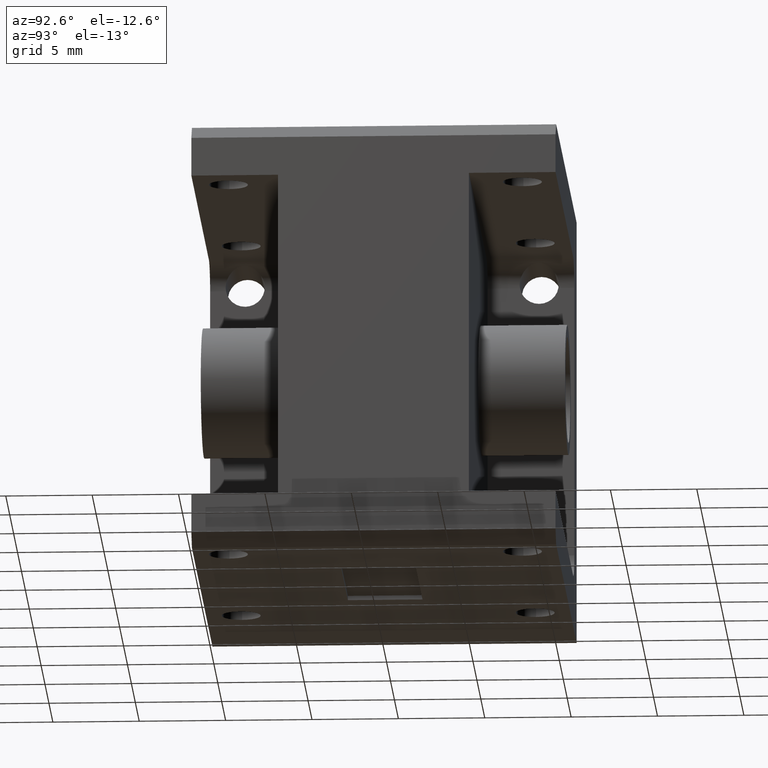
[diagram: clean part render]
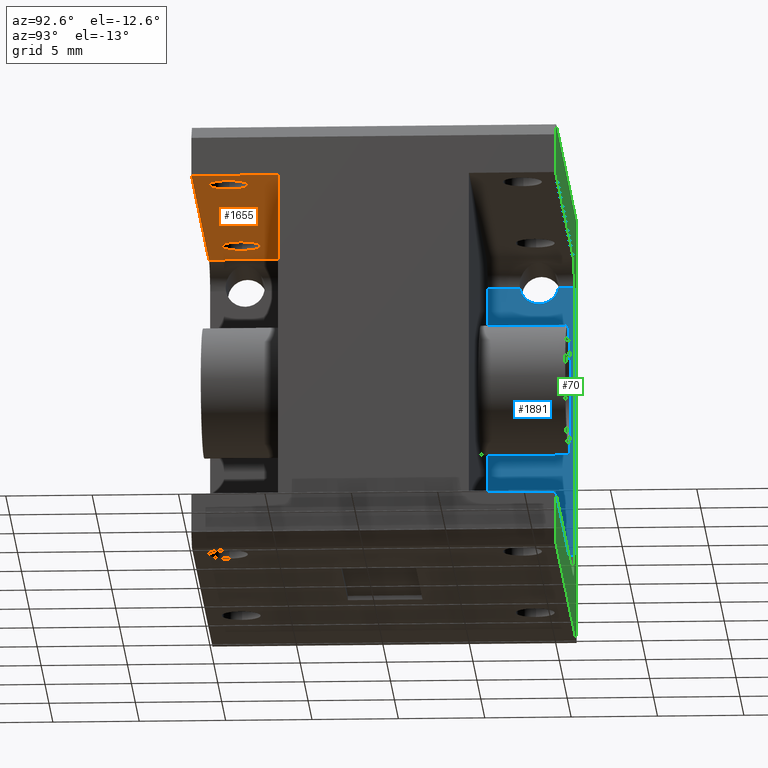
[diagram: same view with three faces highlighted in distinct colors, each labeled with its STEP entity id]
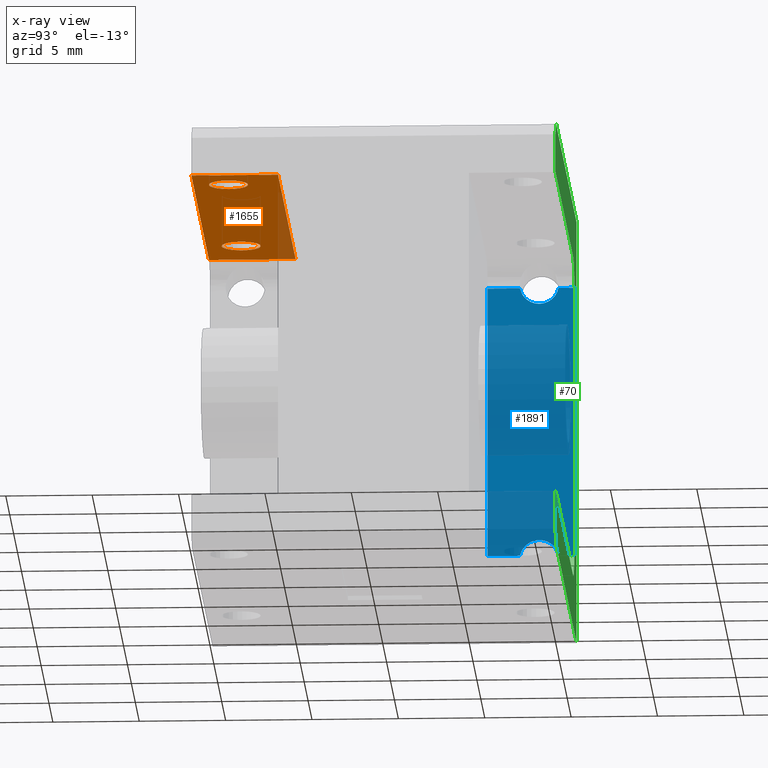
[diagram: x-ray of the same camera — body ghosted, the three highlighted faces saturated]
A machine part, auxiliary view with three faces highlighted in distinct colors.
The next image is the same camera in x-ray (body ghosted, the three faces saturated) — at least one of them is partly hidden behind the body in this view.
Their STEP definitions:

[orange] entity #1655 — the highlighted planar face has unit normal (0, -0, 1).
#98 = DIRECTION ( 'NONE',  ( -0.0000000000000000000, -1.000000000000000000, -0.0000000000000000000 ) ) ;
#190 = DIRECTION ( 'NONE',  ( 1.450025474344088800E-016, -0.0000000000000000000, 1.000000000000000000 ) ) ;
#208 = EDGE_CURVE ( 'NONE', #1714, #748, #1766, .T. ) ;
#235 = ORIENTED_EDGE ( 'NONE', *, *, #208, .F. ) ;
#284 = VERTEX_POINT ( 'NONE', #2054 ) ;
#305 = EDGE_CURVE ( 'NONE', #1714, #2191, #2161, .T. ) ;
#328 = DIRECTION ( 'NONE',  ( 1.450025474344088800E-016, -0.0000000000000000000, 1.000000000000000000 ) ) ;
#426 = VERTEX_POINT ( 'NONE', #1487 ) ;
#441 = CIRCLE ( 'NONE', #1837, 0.04449999999999969300 ) ;
#463 = CARTESIAN_POINT ( 'NONE',  ( -0.3442671711059316400, 0.1975000000000000400, 0.3699345026468289800 ) ) ;
#476 = VECTOR ( 'NONE', #98, 39.37007874015748100 ) ;
#522 = DIRECTION ( 'NONE',  ( 1.000000000000000000, 0.0000000000000000000, 0.0000000000000000000 ) ) ;
#559 = CARTESIAN_POINT ( 'NONE',  ( -0.1577671711059317500, 0.08000000000000002900, 0.3699345026468290300 ) ) ;
#585 = ORIENTED_EDGE ( 'NONE', *, *, #1185, .T. ) ;
#624 = CARTESIAN_POINT ( 'NONE',  ( 0.5377328288940684800, 0.8300000000000000700, 0.3699345026468289800 ) ) ;
#666 = DIRECTION ( 'NONE',  ( 1.450025474344088800E-016, -0.0000000000000000000, 1.000000000000000000 ) ) ;
#676 = CARTESIAN_POINT ( 'NONE',  ( -0.3442671711059315800, 0.1975000000000000100, 0.3699345026468290900 ) ) ;
#748 = VERTEX_POINT ( 'NONE', #463 ) ;
#800 = DIRECTION ( 'NONE',  ( 1.000000000000000000, 0.0000000000000000000, -1.450025474344088800E-016 ) ) ;
#812 = DIRECTION ( 'NONE',  ( 1.450025474344088800E-016, -0.0000000000000000000, 1.000000000000000000 ) ) ;
#840 = VECTOR ( 'NONE', #2396, 39.37007874015748100 ) ;
#854 = CARTESIAN_POINT ( 'NONE',  ( -0.2022671711059314500, 0.08000000000000002900, 0.3699345026468290300 ) ) ;
#885 = CARTESIAN_POINT ( 'NONE',  ( -0.3442671711059315800, 0.0000000000000000000, 0.3699345026468290900 ) ) ;
#897 = FACE_BOUND ( 'NONE', #1592, .T. ) ;
#906 = VERTEX_POINT ( 'NONE', #885 ) ;
#1006 = AXIS2_PLACEMENT_3D ( 'NONE', #854, #666, #522 ) ;
#1009 = PLANE ( 'NONE',  #2290 ) ;
#1045 = DIRECTION ( 'NONE',  ( -1.000000000000000000, 0.0000000000000000000, 1.450025474344088800E-016 ) ) ;
#1079 = ORIENTED_EDGE ( 'NONE', *, *, #305, .T. ) ;
#1154 = CARTESIAN_POINT ( 'NONE',  ( 0.4377328288940685600, 0.07999999999999996000, 0.3699345026468289800 ) ) ;
#1185 = EDGE_CURVE ( 'NONE', #426, #284, #1726, .T. ) ;
#1202 = LINE ( 'NONE', #676, #1600 ) ;
#1339 = EDGE_CURVE ( 'NONE', #2171, #1449, #1395, .T. ) ;
#1346 = EDGE_LOOP ( 'NONE', ( #1351, #1819, #235, #1079 ) ) ;
#1351 = ORIENTED_EDGE ( 'NONE', *, *, #2124, .T. ) ;
#1359 = VECTOR ( 'NONE', #1045, 39.37007874015748100 ) ;
#1395 = CIRCLE ( 'NONE', #1006, 0.04449999999999972000 ) ;
#1419 = CARTESIAN_POINT ( 'NONE',  ( 0.4377328288940685600, 0.07999999999999996000, 0.3699345026468289800 ) ) ;
#1449 = VERTEX_POINT ( 'NONE', #2127 ) ;
#1471 = CARTESIAN_POINT ( 'NONE',  ( 0.5377328288940684800, 0.8300000000000000700, 0.3699345026468289800 ) ) ;
#1487 = CARTESIAN_POINT ( 'NONE',  ( 0.3932328288940689100, 0.07999999999999996000, 0.3699345026468289800 ) ) ;
#1491 = CARTESIAN_POINT ( 'NONE',  ( -0.2022671711059314500, 0.08000000000000002900, 0.3699345026468290300 ) ) ;
#1496 = DIRECTION ( 'NONE',  ( 1.000000000000000000, 0.0000000000000000000, 0.0000000000000000000 ) ) ;
#1521 = EDGE_LOOP ( 'NONE', ( #1757, #2448 ) ) ;
#1592 = EDGE_LOOP ( 'NONE', ( #1878, #585 ) ) ;
#1600 = VECTOR ( 'NONE', #2239, 39.37007874015748100 ) ;
#1621 = AXIS2_PLACEMENT_3D ( 'NONE', #1491, #328, #1496 ) ;
#1655 = ADVANCED_FACE ( 'NONE', ( #897, #1821, #1694 ), #1009, .F. ) ;
#1694 = FACE_OUTER_BOUND ( 'NONE', #1346, .T. ) ;
#1714 = VERTEX_POINT ( 'NONE', #2456 ) ;
#1726 = CIRCLE ( 'NONE', #1730, 0.04449999999999969300 ) ;
#1730 = AXIS2_PLACEMENT_3D ( 'NONE', #1419, #1790, #2010 ) ;
#1757 = ORIENTED_EDGE ( 'NONE', *, *, #1339, .T. ) ;
#1759 = EDGE_CURVE ( 'NONE', #1449, #2171, #2090, .T. ) ;
#1766 = LINE ( 'NONE', #1839, #840 ) ;
#1790 = DIRECTION ( 'NONE',  ( 1.450025474344088800E-016, -0.0000000000000000000, 1.000000000000000000 ) ) ;
#1819 = ORIENTED_EDGE ( 'NONE', *, *, #2108, .T. ) ;
#1821 = FACE_BOUND ( 'NONE', #1521, .T. ) ;
#1837 = AXIS2_PLACEMENT_3D ( 'NONE', #1154, #190, #1952 ) ;
#1839 = CARTESIAN_POINT ( 'NONE',  ( 0.5377328288940683700, 0.1975000000000000400, 0.3699345026468289800 ) ) ;
#1874 = LINE ( 'NONE', #2222, #1359 ) ;
#1878 = ORIENTED_EDGE ( 'NONE', *, *, #2022, .T. ) ;
#1922 = CARTESIAN_POINT ( 'NONE',  ( 0.5377328288940684800, 0.0000000000000000000, 0.3699345026468289800 ) ) ;
#1952 = DIRECTION ( 'NONE',  ( 1.000000000000000000, 0.0000000000000000000, 0.0000000000000000000 ) ) ;
#2010 = DIRECTION ( 'NONE',  ( 1.000000000000000000, 0.0000000000000000000, 0.0000000000000000000 ) ) ;
#2022 = EDGE_CURVE ( 'NONE', #284, #426, #441, .T. ) ;
#2054 = CARTESIAN_POINT ( 'NONE',  ( 0.4822328288940682700, 0.07999999999999996000, 0.3699345026468289800 ) ) ;
#2090 = CIRCLE ( 'NONE', #1621, 0.04449999999999972000 ) ;
#2108 = EDGE_CURVE ( 'NONE', #906, #748, #1202, .T. ) ;
#2124 = EDGE_CURVE ( 'NONE', #2191, #906, #1874, .T. ) ;
#2127 = CARTESIAN_POINT ( 'NONE',  ( -0.2467671711059311900, 0.08000000000000002900, 0.3699345026468290300 ) ) ;
#2161 = LINE ( 'NONE', #1471, #476 ) ;
#2171 = VERTEX_POINT ( 'NONE', #559 ) ;
#2191 = VERTEX_POINT ( 'NONE', #1922 ) ;
#2222 = CARTESIAN_POINT ( 'NONE',  ( 0.5377328288940684800, 0.0000000000000000000, 0.3699345026468289800 ) ) ;
#2239 = DIRECTION ( 'NONE',  ( -0.0000000000000000000, 1.000000000000000000, -0.0000000000000000000 ) ) ;
#2290 = AXIS2_PLACEMENT_3D ( 'NONE', #624, #812, #800 ) ;
#2396 = DIRECTION ( 'NONE',  ( -1.000000000000000000, -0.0000000000000000000, -0.0000000000000000000 ) ) ;
#2448 = ORIENTED_EDGE ( 'NONE', *, *, #1759, .T. ) ;
#2456 = CARTESIAN_POINT ( 'NONE',  ( 0.5377328288940683700, 0.1975000000000000400, 0.3699345026468289800 ) ) ;

[blue] entity #1891 — the highlighted planar face has unit normal (-1, 0, 0).
#29 = VERTEX_POINT ( 'NONE', #791 ) ;
#51 = FACE_OUTER_BOUND ( 'NONE', #1667, .T. ) ;
#117 = DIRECTION ( 'NONE',  ( 0.0000000000000000000, 0.0000000000000000000, 1.000000000000000000 ) ) ;
#121 = ORIENTED_EDGE ( 'NONE', *, *, #1577, .T. ) ;
#137 = DIRECTION ( 'NONE',  ( 0.0000000000000000000, 0.0000000000000000000, -1.000000000000000000 ) ) ;
#148 = ORIENTED_EDGE ( 'NONE', *, *, #902, .T. ) ;
#153 = CARTESIAN_POINT ( 'NONE',  ( -0.4042671711059315800, 0.7937749928612213300, 0.3099345026468290900 ) ) ;
#157 = AXIS2_PLACEMENT_3D ( 'NONE', #1747, #566, #762 ) ;
#168 = CARTESIAN_POINT ( 'NONE',  ( -0.4042671711059315800, 0.8300000000000000700, -0.3140654973531709600 ) ) ;
#221 = EDGE_CURVE ( 'NONE', #1953, #1742, #1251, .T. ) ;
#240 = VERTEX_POINT ( 'NONE', #1047 ) ;
#243 = AXIS2_PLACEMENT_3D ( 'NONE', #2326, #593, #1374 ) ;
#245 = CARTESIAN_POINT ( 'NONE',  ( -0.4042671711059315800, 0.8300000000000000700, -0.3140654973531709600 ) ) ;
#279 = AXIS2_PLACEMENT_3D ( 'NONE', #881, #2070, #117 ) ;
#382 = DIRECTION ( 'NONE',  ( -0.0000000000000000000, 1.000000000000000000, -0.0000000000000000000 ) ) ;
#456 = CARTESIAN_POINT ( 'NONE',  ( -0.4042671711059315800, 0.6325000000000001700, 0.3099345026468290900 ) ) ;
#499 = EDGE_CURVE ( 'NONE', #1919, #29, #899, .T. ) ;
#541 = ORIENTED_EDGE ( 'NONE', *, *, #1367, .F. ) ;
#566 = DIRECTION ( 'NONE',  ( -1.000000000000000000, 0.0000000000000000000, 0.0000000000000000000 ) ) ;
#567 = EDGE_CURVE ( 'NONE', #1742, #240, #2132, .T. ) ;
#593 = DIRECTION ( 'NONE',  ( -1.000000000000000000, 0.0000000000000000000, 0.0000000000000000000 ) ) ;
#602 = CARTESIAN_POINT ( 'NONE',  ( -0.4042671711059315800, 0.6325000000000001700, -0.3140654973531709600 ) ) ;
#654 = CIRCLE ( 'NONE', #279, 0.04449999999999969300 ) ;
#656 = LINE ( 'NONE', #717, #1332 ) ;
#712 = VECTOR ( 'NONE', #382, 39.37007874015748100 ) ;
#717 = CARTESIAN_POINT ( 'NONE',  ( -0.4042671711059315800, 0.8300000000000000700, 0.3699345026468290900 ) ) ;
#726 = CARTESIAN_POINT ( 'NONE',  ( -0.4042671711059315800, 0.6325000000000001700, 0.3099345026468290900 ) ) ;
#727 = VERTEX_POINT ( 'NONE', #1836 ) ;
#733 = VERTEX_POINT ( 'NONE', #1968 ) ;
#762 = DIRECTION ( 'NONE',  ( 0.0000000000000000000, 0.0000000000000000000, 1.000000000000000000 ) ) ;
#778 = VECTOR ( 'NONE', #1231, 39.37007874015748100 ) ;
#791 = CARTESIAN_POINT ( 'NONE',  ( -0.4042671711059315800, 0.7500000000000001100, 0.2734345026468292300 ) ) ;
#829 = VECTOR ( 'NONE', #2385, 39.37007874015748100 ) ;
#847 = DIRECTION ( 'NONE',  ( 0.0000000000000000000, 0.0000000000000000000, 1.000000000000000000 ) ) ;
#864 = LINE ( 'NONE', #168, #712 ) ;
#881 = CARTESIAN_POINT ( 'NONE',  ( -0.4042671711059315800, 0.7500000000000001100, -0.3220654973531710800 ) ) ;
#899 = CIRCLE ( 'NONE', #243, 0.04449999999999969300 ) ;
#902 = EDGE_CURVE ( 'NONE', #1675, #1919, #1138, .T. ) ;
#1047 = CARTESIAN_POINT ( 'NONE',  ( -0.4042671711059315800, 0.7500000000000001100, -0.2775654973531713800 ) ) ;
#1081 = VECTOR ( 'NONE', #2053, 39.37007874015748100 ) ;
#1138 = LINE ( 'NONE', #2061, #1081 ) ;
#1142 = ORIENTED_EDGE ( 'NONE', *, *, #499, .T. ) ;
#1173 = CARTESIAN_POINT ( 'NONE',  ( -0.4042671711059315800, 0.7062250071387787800, 0.3099345026468290900 ) ) ;
#1231 = DIRECTION ( 'NONE',  ( -0.0000000000000000000, 1.000000000000000000, -0.0000000000000000000 ) ) ;
#1251 = LINE ( 'NONE', #245, #778 ) ;
#1262 = AXIS2_PLACEMENT_3D ( 'NONE', #1516, #1934, #2293 ) ;
#1276 = ORIENTED_EDGE ( 'NONE', *, *, #1318, .T. ) ;
#1294 = CARTESIAN_POINT ( 'NONE',  ( -0.4042671711059315800, 0.6325000000000001700, -0.3740654973531709100 ) ) ;
#1318 = EDGE_CURVE ( 'NONE', #29, #1960, #1909, .T. ) ;
#1332 = VECTOR ( 'NONE', #137, 39.37007874015748100 ) ;
#1367 = EDGE_CURVE ( 'NONE', #1675, #733, #656, .T. ) ;
#1374 = DIRECTION ( 'NONE',  ( 0.0000000000000000000, 0.0000000000000000000, 1.000000000000000000 ) ) ;
#1385 = ORIENTED_EDGE ( 'NONE', *, *, #1812, .T. ) ;
#1499 = ORIENTED_EDGE ( 'NONE', *, *, #2087, .T. ) ;
#1514 = VERTEX_POINT ( 'NONE', #726 ) ;
#1516 = CARTESIAN_POINT ( 'NONE',  ( -0.4042671711059315800, 0.8300000000000000700, 0.3699345026468290900 ) ) ;
#1552 = ORIENTED_EDGE ( 'NONE', *, *, #1799, .F. ) ;
#1568 = VECTOR ( 'NONE', #1702, 39.37007874015748100 ) ;
#1577 = EDGE_CURVE ( 'NONE', #727, #733, #864, .T. ) ;
#1603 = LINE ( 'NONE', #1294, #1568 ) ;
#1638 = CARTESIAN_POINT ( 'NONE',  ( -0.4042671711059315800, 0.7500000000000001100, 0.3179345026468289300 ) ) ;
#1660 = LINE ( 'NONE', #456, #829 ) ;
#1667 = EDGE_LOOP ( 'NONE', ( #1552, #2316, #2238, #1385, #121, #541, #148, #1142, #1276, #1499 ) ) ;
#1670 = AXIS2_PLACEMENT_3D ( 'NONE', #1638, #2431, #847 ) ;
#1675 = VERTEX_POINT ( 'NONE', #2177 ) ;
#1702 = DIRECTION ( 'NONE',  ( 0.0000000000000000000, 0.0000000000000000000, 1.000000000000000000 ) ) ;
#1735 = PLANE ( 'NONE',  #1262 ) ;
#1742 = VERTEX_POINT ( 'NONE', #2283 ) ;
#1747 = CARTESIAN_POINT ( 'NONE',  ( -0.4042671711059315800, 0.7500000000000001100, -0.3220654973531710800 ) ) ;
#1799 = EDGE_CURVE ( 'NONE', #1953, #1514, #1603, .T. ) ;
#1812 = EDGE_CURVE ( 'NONE', #240, #727, #654, .T. ) ;
#1836 = CARTESIAN_POINT ( 'NONE',  ( -0.4042671711059315800, 0.7937749928612213300, -0.3140654973531709600 ) ) ;
#1891 = ADVANCED_FACE ( 'NONE', ( #51 ), #1735, .F. ) ;
#1909 = CIRCLE ( 'NONE', #1670, 0.04449999999999969300 ) ;
#1919 = VERTEX_POINT ( 'NONE', #153 ) ;
#1934 = DIRECTION ( 'NONE',  ( -1.000000000000000000, 0.0000000000000000000, 0.0000000000000000000 ) ) ;
#1953 = VERTEX_POINT ( 'NONE', #602 ) ;
#1960 = VERTEX_POINT ( 'NONE', #1173 ) ;
#1968 = CARTESIAN_POINT ( 'NONE',  ( -0.4042671711059315800, 0.8300000000000000700, -0.3140654973531710200 ) ) ;
#2053 = DIRECTION ( 'NONE',  ( 0.0000000000000000000, -1.000000000000000000, 0.0000000000000000000 ) ) ;
#2061 = CARTESIAN_POINT ( 'NONE',  ( -0.4042671711059315800, 0.6325000000000001700, 0.3099345026468290900 ) ) ;
#2070 = DIRECTION ( 'NONE',  ( -1.000000000000000000, 0.0000000000000000000, 0.0000000000000000000 ) ) ;
#2087 = EDGE_CURVE ( 'NONE', #1960, #1514, #1660, .T. ) ;
#2132 = CIRCLE ( 'NONE', #157, 0.04449999999999969300 ) ;
#2177 = CARTESIAN_POINT ( 'NONE',  ( -0.4042671711059315800, 0.8300000000000000700, 0.3099345026468290900 ) ) ;
#2238 = ORIENTED_EDGE ( 'NONE', *, *, #567, .T. ) ;
#2283 = CARTESIAN_POINT ( 'NONE',  ( -0.4042671711059315800, 0.7062250071387787800, -0.3140654973531709600 ) ) ;
#2293 = DIRECTION ( 'NONE',  ( 0.0000000000000000000, 0.0000000000000000000, 1.000000000000000000 ) ) ;
#2316 = ORIENTED_EDGE ( 'NONE', *, *, #221, .T. ) ;
#2326 = CARTESIAN_POINT ( 'NONE',  ( -0.4042671711059315800, 0.7500000000000001100, 0.3179345026468289300 ) ) ;
#2385 = DIRECTION ( 'NONE',  ( 0.0000000000000000000, -1.000000000000000000, 0.0000000000000000000 ) ) ;
#2431 = DIRECTION ( 'NONE',  ( -1.000000000000000000, 0.0000000000000000000, 0.0000000000000000000 ) ) ;

[green] entity #70 — the highlighted planar face has unit normal (0, 1, 0).
#30 = CARTESIAN_POINT ( 'NONE',  ( 0.0000000000000000000, 0.8300000000000000700, 0.0000000000000000000 ) ) ;
#39 = AXIS2_PLACEMENT_3D ( 'NONE', #2145, #770, #2512 ) ;
#44 = CARTESIAN_POINT ( 'NONE',  ( 0.5377328288940683700, 0.8300000000000000700, -0.3740654973531709600 ) ) ;
#62 = LINE ( 'NONE', #958, #326 ) ;
#63 = ORIENTED_EDGE ( 'NONE', *, *, #601, .T. ) ;
#64 = ORIENTED_EDGE ( 'NONE', *, *, #1557, .T. ) ;
#70 = ADVANCED_FACE ( 'NONE', ( #2466 ), #1990, .T. ) ;
#76 = CARTESIAN_POINT ( 'NONE',  ( -0.3442671711059315800, 0.8300000000000000700, 0.3699345026468290900 ) ) ;
#115 = VECTOR ( 'NONE', #1399, 39.37007874015748100 ) ;
#137 = DIRECTION ( 'NONE',  ( 0.0000000000000000000, 0.0000000000000000000, -1.000000000000000000 ) ) ;
#156 = VERTEX_POINT ( 'NONE', #76 ) ;
#182 = AXIS2_PLACEMENT_3D ( 'NONE', #1575, #1157, #1376 ) ;
#233 = DIRECTION ( 'NONE',  ( -0.0000000000000000000, -0.0000000000000000000, 1.000000000000000000 ) ) ;
#321 = LINE ( 'NONE', #2188, #2338 ) ;
#326 = VECTOR ( 'NONE', #1728, 39.37007874015748100 ) ;
#405 = EDGE_CURVE ( 'NONE', #1895, #1985, #1484, .T. ) ;
#506 = LINE ( 'NONE', #1386, #115 ) ;
#513 = EDGE_CURVE ( 'NONE', #733, #1033, #1215, .T. ) ;
#521 = ORIENTED_EDGE ( 'NONE', *, *, #1367, .T. ) ;
#557 = CARTESIAN_POINT ( 'NONE',  ( 0.5377328288940684800, 0.8300000000000000700, -0.4920654973531710100 ) ) ;
#562 = CARTESIAN_POINT ( 'NONE',  ( -0.3442671711059315800, 0.8300000000000000700, -0.3740654973531709600 ) ) ;
#575 = DIRECTION ( 'NONE',  ( 0.7071067811865468000, -0.0000000000000000000, -0.7071067811865483500 ) ) ;
#596 = DIRECTION ( 'NONE',  ( 0.0000000000000000000, 1.000000000000000000, 0.0000000000000000000 ) ) ;
#601 = EDGE_CURVE ( 'NONE', #1034, #1652, #62, .T. ) ;
#635 = EDGE_CURVE ( 'NONE', #1092, #1964, #2251, .T. ) ;
#649 = EDGE_CURVE ( 'NONE', #2346, #1034, #2432, .T. ) ;
#656 = LINE ( 'NONE', #717, #1332 ) ;
#660 = VERTEX_POINT ( 'NONE', #44 ) ;
#699 = EDGE_CURVE ( 'NONE', #1033, #660, #506, .T. ) ;
#714 = VECTOR ( 'NONE', #1599, 39.37007874015748100 ) ;
#717 = CARTESIAN_POINT ( 'NONE',  ( -0.4042671711059315800, 0.8300000000000000700, 0.3699345026468290900 ) ) ;
#733 = VERTEX_POINT ( 'NONE', #1968 ) ;
#740 = VECTOR ( 'NONE', #575, 39.37007874015748100 ) ;
#770 = DIRECTION ( 'NONE',  ( -0.0000000000000000000, -1.000000000000000000, -0.0000000000000000000 ) ) ;
#833 = ORIENTED_EDGE ( 'NONE', *, *, #635, .T. ) ;
#892 = VECTOR ( 'NONE', #2416, 39.37007874015748100 ) ;
#958 = CARTESIAN_POINT ( 'NONE',  ( 0.5377328288940684800, 0.8300000000000000700, 0.4879345026468289700 ) ) ;
#966 = CARTESIAN_POINT ( 'NONE',  ( 0.5077328288940683400, 0.8300000000000000700, -0.4920654973531710100 ) ) ;
#1023 = VECTOR ( 'NONE', #233, 39.37007874015748100 ) ;
#1030 = ORIENTED_EDGE ( 'NONE', *, *, #1246, .T. ) ;
#1033 = VERTEX_POINT ( 'NONE', #562 ) ;
#1034 = VERTEX_POINT ( 'NONE', #2494 ) ;
#1082 = EDGE_CURVE ( 'NONE', #1652, #1092, #1537, .T. ) ;
#1092 = VERTEX_POINT ( 'NONE', #1569 ) ;
#1157 = DIRECTION ( 'NONE',  ( -0.0000000000000000000, -1.000000000000000000, -0.0000000000000000000 ) ) ;
#1165 = ORIENTED_EDGE ( 'NONE', *, *, #2151, .T. ) ;
#1170 = LINE ( 'NONE', #1396, #2491 ) ;
#1189 = ORIENTED_EDGE ( 'NONE', *, *, #405, .T. ) ;
#1215 = CIRCLE ( 'NONE', #39, 0.06000000000000001200 ) ;
#1218 = CARTESIAN_POINT ( 'NONE',  ( -0.5222671711059315700, 0.8300000000000000700, 0.4879345026468290800 ) ) ;
#1238 = ORIENTED_EDGE ( 'NONE', *, *, #1082, .T. ) ;
#1246 = EDGE_CURVE ( 'NONE', #1964, #156, #1170, .T. ) ;
#1319 = CARTESIAN_POINT ( 'NONE',  ( 0.5377328288940684800, 0.8300000000000000700, -0.4620654973531706500 ) ) ;
#1331 = CARTESIAN_POINT ( 'NONE',  ( 0.4998991631236220900, 0.8300000000000000700, -0.4998991631236175400 ) ) ;
#1332 = VECTOR ( 'NONE', #137, 39.37007874015748100 ) ;
#1367 = EDGE_CURVE ( 'NONE', #1675, #733, #656, .T. ) ;
#1376 = DIRECTION ( 'NONE',  ( 0.0000000000000000000, 0.0000000000000000000, 1.000000000000000000 ) ) ;
#1380 = CARTESIAN_POINT ( 'NONE',  ( -0.5222671711059315700, 0.8300000000000000700, -0.4920654973531708400 ) ) ;
#1386 = CARTESIAN_POINT ( 'NONE',  ( -0.4042671711059315800, 0.8300000000000000700, -0.3740654973531709600 ) ) ;
#1396 = CARTESIAN_POINT ( 'NONE',  ( 0.5377328288940684800, 0.8300000000000000700, 0.3699345026468289800 ) ) ;
#1399 = DIRECTION ( 'NONE',  ( 1.000000000000000000, 0.0000000000000000000, 0.0000000000000000000 ) ) ;
#1428 = DIRECTION ( 'NONE',  ( -1.000000000000000000, 0.0000000000000000000, 1.450025474344088800E-016 ) ) ;
#1484 = LINE ( 'NONE', #1331, #1825 ) ;
#1537 = LINE ( 'NONE', #2324, #740 ) ;
#1557 = EDGE_CURVE ( 'NONE', #156, #1675, #1907, .T. ) ;
#1569 = CARTESIAN_POINT ( 'NONE',  ( 0.5377328288940684800, 0.8300000000000000700, 0.4579345026468293300 ) ) ;
#1575 = CARTESIAN_POINT ( 'NONE',  ( -0.3442671711059315800, 0.8300000000000000700, 0.3099345026468290900 ) ) ;
#1579 = ORIENTED_EDGE ( 'NONE', *, *, #649, .T. ) ;
#1599 = DIRECTION ( 'NONE',  ( 0.0000000000000000000, 0.0000000000000000000, -1.000000000000000000 ) ) ;
#1642 = EDGE_LOOP ( 'NONE', ( #63, #1238, #833, #1030, #64, #521, #2167, #2137, #1789, #1189, #1165, #1579 ) ) ;
#1645 = EDGE_CURVE ( 'NONE', #660, #1895, #321, .T. ) ;
#1652 = VERTEX_POINT ( 'NONE', #1982 ) ;
#1675 = VERTEX_POINT ( 'NONE', #2177 ) ;
#1728 = DIRECTION ( 'NONE',  ( 1.000000000000000000, -0.0000000000000000000, -1.288607544181256200E-016 ) ) ;
#1762 = CARTESIAN_POINT ( 'NONE',  ( 0.5377328288940684800, 0.8300000000000000700, 0.3699345026468289800 ) ) ;
#1785 = DIRECTION ( 'NONE',  ( 0.0000000000000000000, -0.0000000000000000000, 1.000000000000000000 ) ) ;
#1789 = ORIENTED_EDGE ( 'NONE', *, *, #1645, .T. ) ;
#1796 = DIRECTION ( 'NONE',  ( 5.787813545898858700E-016, 0.0000000000000000000, -1.000000000000000000 ) ) ;
#1802 = CARTESIAN_POINT ( 'NONE',  ( 0.5377328288940684800, 0.8300000000000000700, 0.4879345026468289700 ) ) ;
#1825 = VECTOR ( 'NONE', #2302, 39.37007874015748100 ) ;
#1895 = VERTEX_POINT ( 'NONE', #1319 ) ;
#1907 = CIRCLE ( 'NONE', #182, 0.05999999999999997700 ) ;
#1964 = VERTEX_POINT ( 'NONE', #1762 ) ;
#1968 = CARTESIAN_POINT ( 'NONE',  ( -0.4042671711059315800, 0.8300000000000000700, -0.3140654973531710200 ) ) ;
#1982 = CARTESIAN_POINT ( 'NONE',  ( 0.5077328288940683400, 0.8300000000000000700, 0.4879345026468289700 ) ) ;
#1985 = VERTEX_POINT ( 'NONE', #966 ) ;
#1990 = PLANE ( 'NONE',  #2271 ) ;
#2137 = ORIENTED_EDGE ( 'NONE', *, *, #699, .T. ) ;
#2145 = CARTESIAN_POINT ( 'NONE',  ( -0.3442671711059315800, 0.8300000000000000700, -0.3140654973531709600 ) ) ;
#2151 = EDGE_CURVE ( 'NONE', #1985, #2346, #2363, .T. ) ;
#2167 = ORIENTED_EDGE ( 'NONE', *, *, #513, .T. ) ;
#2177 = CARTESIAN_POINT ( 'NONE',  ( -0.4042671711059315800, 0.8300000000000000700, 0.3099345026468290900 ) ) ;
#2188 = CARTESIAN_POINT ( 'NONE',  ( 0.5377328288940683700, 0.8300000000000000700, -0.3740654973531709600 ) ) ;
#2251 = LINE ( 'NONE', #1802, #714 ) ;
#2271 = AXIS2_PLACEMENT_3D ( 'NONE', #30, #596, #1785 ) ;
#2302 = DIRECTION ( 'NONE',  ( -0.7071067811865443500, 0.0000000000000000000, -0.7071067811865507900 ) ) ;
#2324 = CARTESIAN_POINT ( 'NONE',  ( 0.4978336657704492400, 0.8300000000000000700, 0.4978336657704481300 ) ) ;
#2338 = VECTOR ( 'NONE', #1796, 39.37007874015748100 ) ;
#2346 = VERTEX_POINT ( 'NONE', #1380 ) ;
#2363 = LINE ( 'NONE', #557, #892 ) ;
#2416 = DIRECTION ( 'NONE',  ( -1.000000000000000000, 0.0000000000000000000, 1.932911316271884200E-016 ) ) ;
#2432 = LINE ( 'NONE', #1218, #1023 ) ;
#2466 = FACE_OUTER_BOUND ( 'NONE', #1642, .T. ) ;
#2491 = VECTOR ( 'NONE', #1428, 39.37007874015748100 ) ;
#2494 = CARTESIAN_POINT ( 'NONE',  ( -0.5222671711059315700, 0.8300000000000000700, 0.4879345026468290800 ) ) ;
#2512 = DIRECTION ( 'NONE',  ( 0.0000000000000000000, 0.0000000000000000000, 1.000000000000000000 ) ) ;